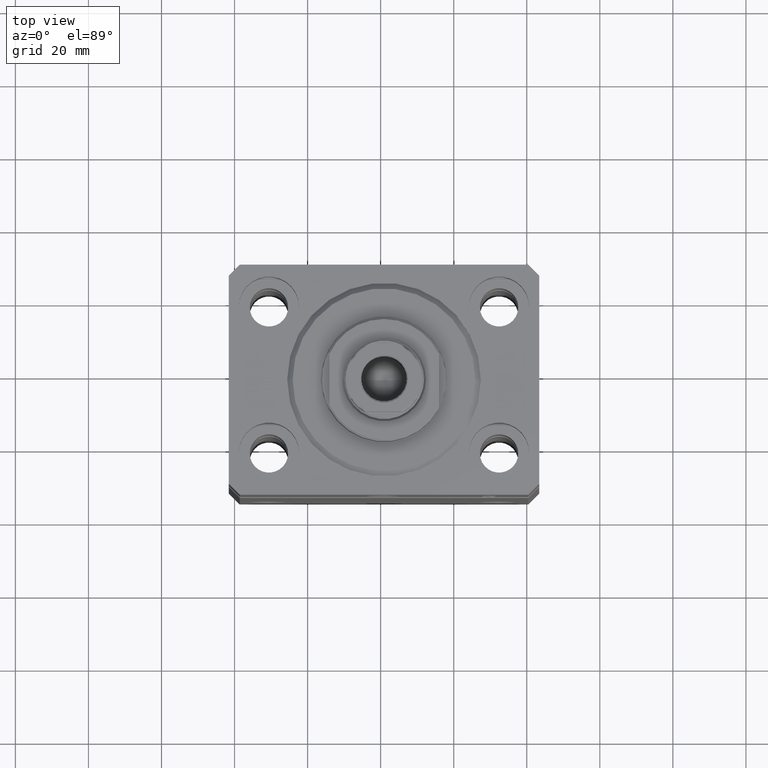
[diagram: clean part render]
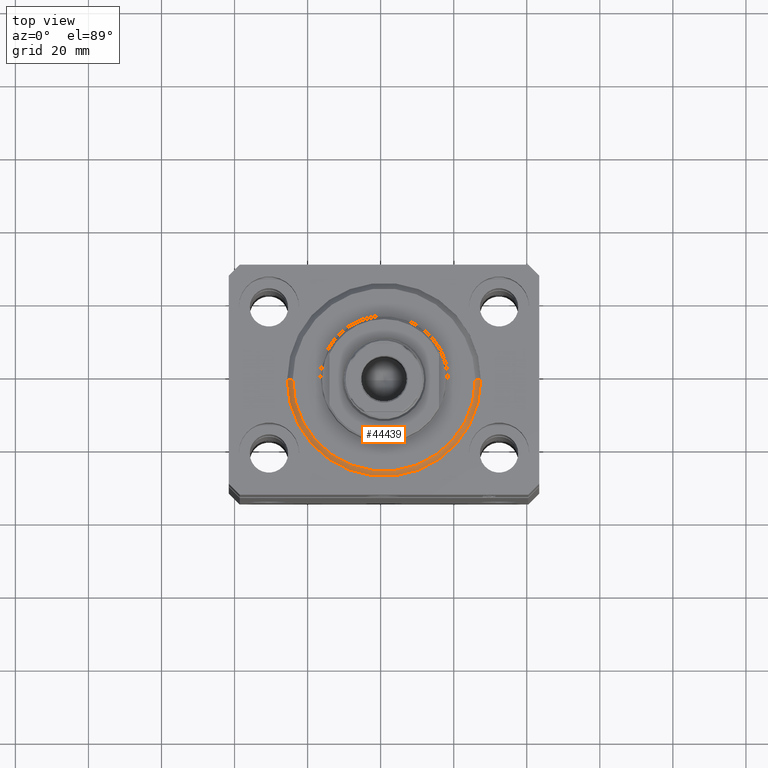
[diagram: same view with one face highlighted and labeled with its STEP entity id]
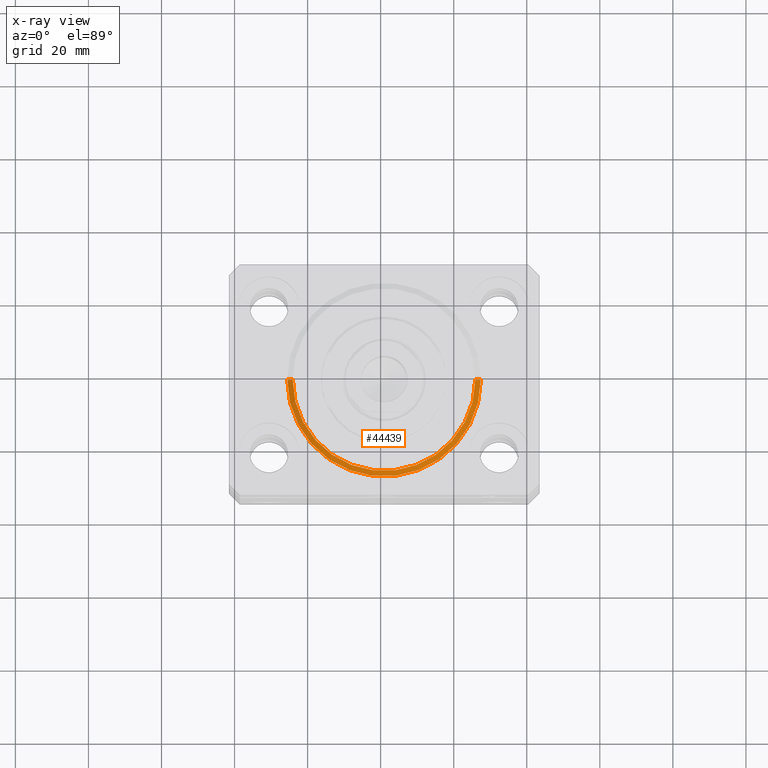
[diagram: x-ray of the same camera — body ghosted, the highlighted face saturated]
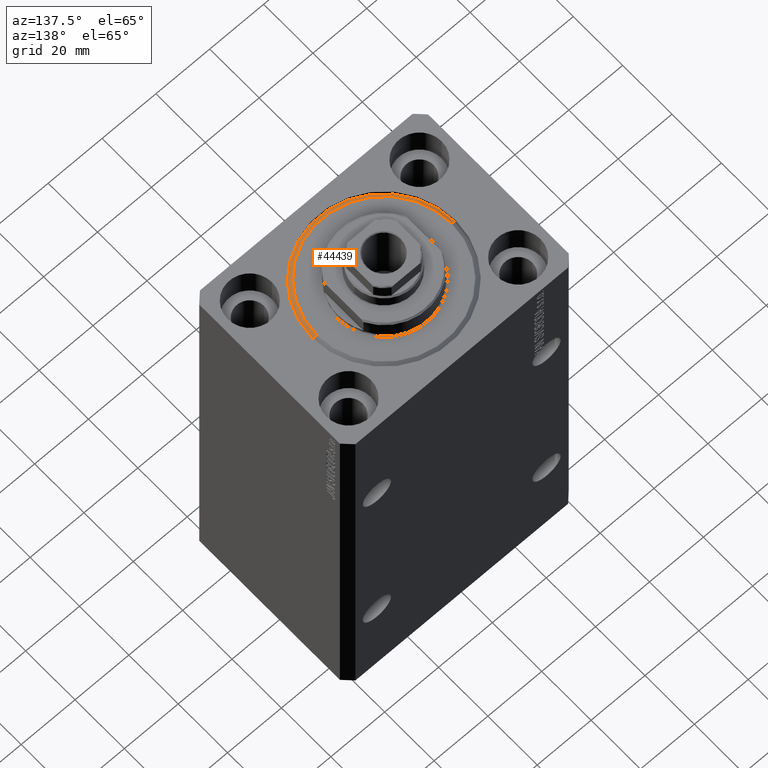
[diagram: same view with one face highlighted and labeled with its STEP entity id]
A machine part, top view. The second image highlights one B-rep face of the part: STEP entity #44439.
The next image is the same camera in x-ray: the body ghosted, the highlighted face saturated — about 0% of this face is hidden behind the body in this view.
A second angle (auxiliary view) of the same face is appended — the face is thin or edge-on in the first view.
In plain terms, the highlighted conical surface has half-angle 45 deg.
Its self-contained STEP definition (entity closure, byte-faithful):
#356 = DIRECTION ( 'NONE',  ( 1.000000000000000000, 0.000000000000000000, 0.000000000000000000 ) ) ;
#725 = DIRECTION ( 'NONE',  ( -0.000000000000000000, -0.000000000000000000, -1.000000000000000000 ) ) ;
#1496 = CARTESIAN_POINT ( 'NONE',  ( -26.50000000000000355, 3.245314017740486554E-15, 1.500000000000018652 ) ) ;
#2049 = VECTOR ( 'NONE', #4924, 1000.000000000000000 ) ;
#2240 = EDGE_LOOP ( 'NONE', ( #6780, #37864, #38481, #29350 ) ) ;
#4924 = DIRECTION ( 'NONE',  ( -0.7071067811865483499, 8.659560562354942719E-17, 0.7071067811865466846 ) ) ;
#6603 = VERTEX_POINT ( 'NONE', #18725 ) ;
#6780 = ORIENTED_EDGE ( 'NONE', *, *, #41781, .F. ) ;
#7012 = FACE_OUTER_BOUND ( 'NONE', #2240, .T. ) ;
#11374 = LINE ( 'NONE', #1496, #2049 ) ;
#12214 = CIRCLE ( 'NONE', #38577, 26.50000000000000355 ) ;
#12916 = CARTESIAN_POINT ( 'NONE',  ( 24.99999999999998224, 0.000000000000000000, 0.000000000000000000 ) ) ;
#13201 = CARTESIAN_POINT ( 'NONE',  ( -24.99999999999998224, 3.153465507804433615E-15, 0.000000000000000000 ) ) ;
#13842 = CONICAL_SURFACE ( 'NONE', #27014, 26.50000000000000355, 0.7853981633974495002 ) ;
#14551 = CARTESIAN_POINT ( 'NONE',  ( 0.000000000000000000, 0.000000000000000000, 1.500000000000018652 ) ) ;
#16115 = AXIS2_PLACEMENT_3D ( 'NONE', #31908, #725, #20690 ) ;
#17347 = CARTESIAN_POINT ( 'NONE',  ( 0.000000000000000000, 0.000000000000000000, 1.500000000000018652 ) ) ;
#17761 = DIRECTION ( 'NONE',  ( 1.000000000000000000, 0.000000000000000000, 0.000000000000000000 ) ) ;
#18714 = CARTESIAN_POINT ( 'NONE',  ( 26.50000000000000355, 3.245314017740486554E-15, 1.500000000000018652 ) ) ;
#18725 = CARTESIAN_POINT ( 'NONE',  ( -26.50000000000000355, 0.000000000000000000, 1.500000000000018652 ) ) ;
#19386 = LINE ( 'NONE', #33361, #33973 ) ;
#20690 = DIRECTION ( 'NONE',  ( 1.000000000000000000, 0.000000000000000000, 0.000000000000000000 ) ) ;
#21100 = EDGE_CURVE ( 'NONE', #32526, #21667, #43926, .T. ) ;
#21667 = VERTEX_POINT ( 'NONE', #13201 ) ;
#23057 = DIRECTION ( 'NONE',  ( 0.7071067811865483499, 0.000000000000000000, 0.7071067811865466846 ) ) ;
#25125 = DIRECTION ( 'NONE',  ( -0.000000000000000000, -0.000000000000000000, 1.000000000000000000 ) ) ;
#27014 = AXIS2_PLACEMENT_3D ( 'NONE', #17347, #25125, #356 ) ;
#29080 = EDGE_CURVE ( 'NONE', #32526, #35362, #19386, .T. ) ;
#29350 = ORIENTED_EDGE ( 'NONE', *, *, #35648, .F. ) ;
#31908 = CARTESIAN_POINT ( 'NONE',  ( 0.000000000000000000, 0.000000000000000000, 0.000000000000000000 ) ) ;
#32526 = VERTEX_POINT ( 'NONE', #12916 ) ;
#33361 = CARTESIAN_POINT ( 'NONE',  ( 26.50000000000000355, 0.000000000000000000, 1.500000000000018652 ) ) ;
#33973 = VECTOR ( 'NONE', #23057, 1000.000000000000000 ) ;
#35362 = VERTEX_POINT ( 'NONE', #18714 ) ;
#35648 = EDGE_CURVE ( 'NONE', #6603, #35362, #12214, .T. ) ;
#37864 = ORIENTED_EDGE ( 'NONE', *, *, #21100, .F. ) ;
#38481 = ORIENTED_EDGE ( 'NONE', *, *, #29080, .T. ) ;
#38577 = AXIS2_PLACEMENT_3D ( 'NONE', #14551, #39544, #17761 ) ;
#39544 = DIRECTION ( 'NONE',  ( -0.000000000000000000, -0.000000000000000000, 1.000000000000000000 ) ) ;
#41781 = EDGE_CURVE ( 'NONE', #21667, #6603, #11374, .T. ) ;
#43926 = CIRCLE ( 'NONE', #16115, 24.99999999999998224 ) ;
#44439 = ADVANCED_FACE ( 'NONE', ( #7012 ), #13842, .T. ) ;